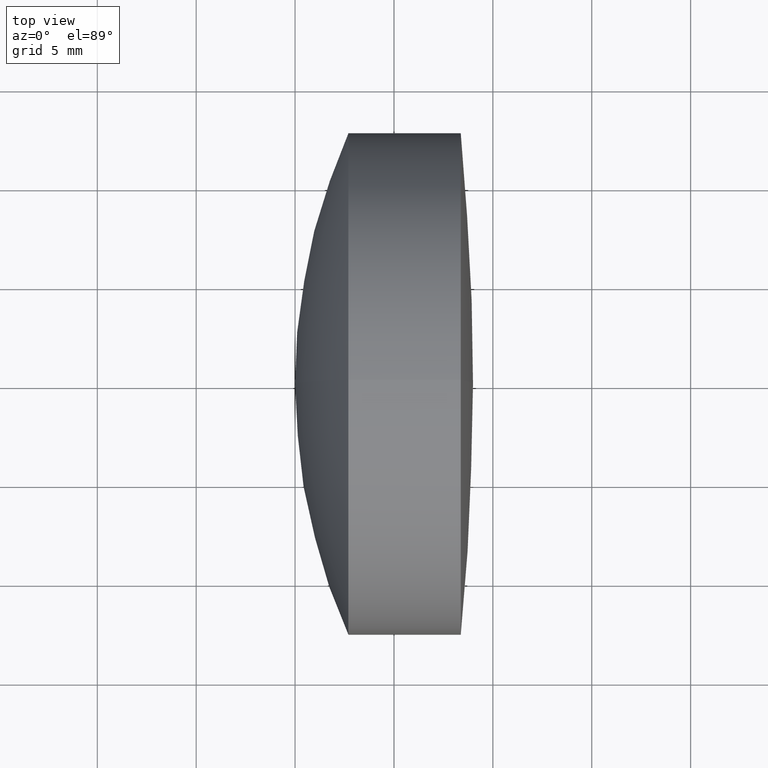
[diagram: clean part render]
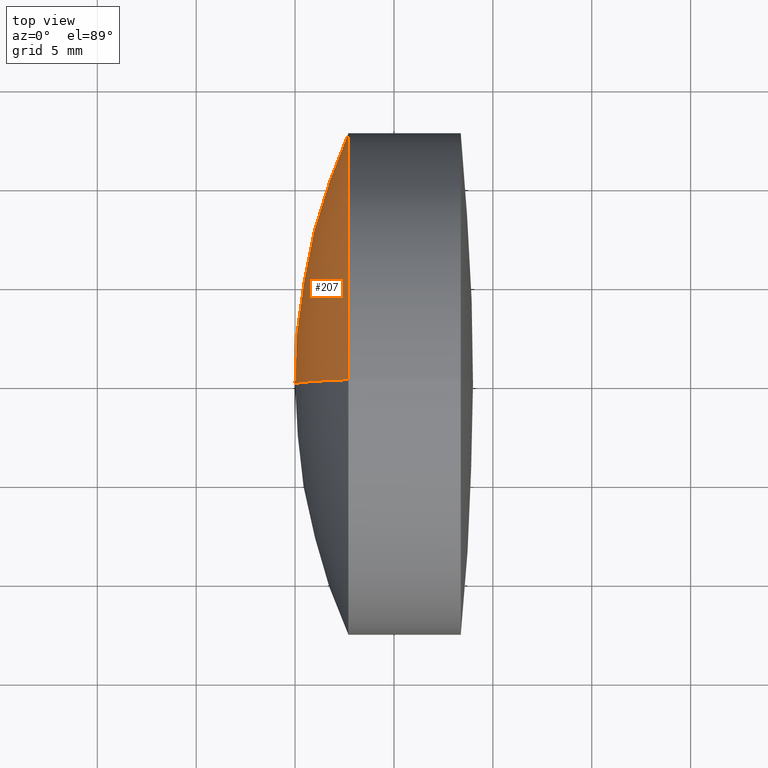
[diagram: same view with one face highlighted and labeled with its STEP entity id]
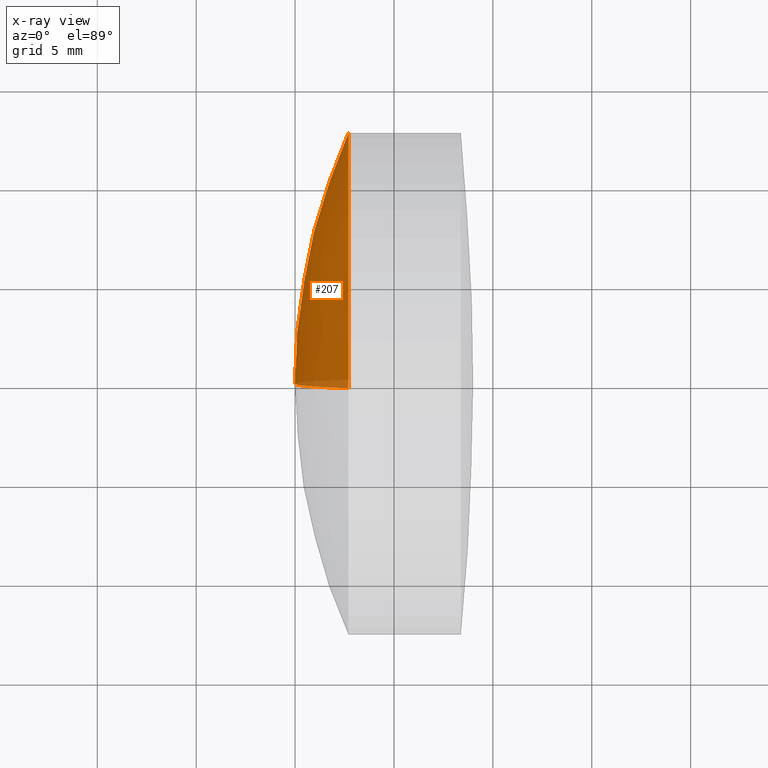
[diagram: x-ray of the same camera — body ghosted, the highlighted face saturated]
A machine part, top view. The second image highlights one B-rep face of the part: STEP entity #207.
The next image is the same camera in x-ray: the body ghosted, the highlighted face saturated — about 3% of this face is hidden behind the body in this view.
In plain terms, the highlighted spherical surface has radius 31.2 mm.
Its self-contained STEP definition (entity closure, byte-faithful):
#13 = EDGE_CURVE ( 'NONE', #32, #209, #19, .T. ) ;
#19 = CIRCLE ( 'NONE', #43, 31.19999999999998500 ) ;
#32 = VERTEX_POINT ( 'NONE', #253 ) ;
#34 = DIRECTION ( 'NONE',  ( 0.0000000000000000000, -1.224646799147353200E-016, 1.000000000000000000 ) ) ;
#35 = CARTESIAN_POINT ( 'NONE',  ( 261.1958458084194500, 0.0000000000000000000, -5.967343666751443000E-015 ) ) ;
#43 = AXIS2_PLACEMENT_3D ( 'NONE', #35, #57, #155 ) ;
#57 = DIRECTION ( 'NONE',  ( 0.0000000000000000000, -1.000000000000000000, 0.0000000000000000000 ) ) ;
#62 = EDGE_LOOP ( 'NONE', ( #242, #258, #224 ) ) ;
#71 = DIRECTION ( 'NONE',  ( 0.0000000000000000000, 1.000000000000000000, 0.0000000000000000000 ) ) ;
#89 = DIRECTION ( 'NONE',  ( 0.0000000000000000000, 0.0000000000000000000, 1.000000000000000000 ) ) ;
#112 = DIRECTION ( 'NONE',  ( 0.0000000000000000000, 0.0000000000000000000, 1.000000000000000000 ) ) ;
#129 = CIRCLE ( 'NONE', #192, 12.69999999999999200 ) ;
#137 = FACE_OUTER_BOUND ( 'NONE', #62, .T. ) ;
#155 = DIRECTION ( 'NONE',  ( 0.0000000000000000000, 0.0000000000000000000, -1.000000000000000000 ) ) ;
#178 = AXIS2_PLACEMENT_3D ( 'NONE', #312, #281, #34 ) ;
#183 = CARTESIAN_POINT ( 'NONE',  ( 229.9958458084194600, 0.0000000000000000000, -4.056894660081572400E-015 ) ) ;
#192 = AXIS2_PLACEMENT_3D ( 'NONE', #324, #297, #112 ) ;
#195 = SPHERICAL_SURFACE ( 'NONE', #270, 31.19999999999998500 ) ;
#196 = EDGE_CURVE ( 'NONE', #239, #209, #205, .T. ) ;
#205 = CIRCLE ( 'NONE', #178, 31.19999999999998500 ) ;
#207 = ADVANCED_FACE ( 'NONE', ( #137 ), #195, .T. ) ;
#209 = VERTEX_POINT ( 'NONE', #183 ) ;
#216 = CARTESIAN_POINT ( 'NONE',  ( 261.1958458084194500, 0.0000000000000000000, -5.967343666751443000E-015 ) ) ;
#221 = EDGE_CURVE ( 'NONE', #32, #239, #129, .T. ) ;
#224 = ORIENTED_EDGE ( 'NONE', *, *, #13, .F. ) ;
#239 = VERTEX_POINT ( 'NONE', #322 ) ;
#242 = ORIENTED_EDGE ( 'NONE', *, *, #221, .T. ) ;
#253 = CARTESIAN_POINT ( 'NONE',  ( 232.6976002483854100, 0.0000000000000000000, 12.69999999999999600 ) ) ;
#258 = ORIENTED_EDGE ( 'NONE', *, *, #196, .T. ) ;
#270 = AXIS2_PLACEMENT_3D ( 'NONE', #216, #71, #89 ) ;
#281 = DIRECTION ( 'NONE',  ( -0.0000000000000000000, 1.000000000000000000, 1.224646799147353200E-016 ) ) ;
#297 = DIRECTION ( 'NONE',  ( -1.000000000000000000, -0.0000000000000000000, -0.0000000000000000000 ) ) ;
#312 = CARTESIAN_POINT ( 'NONE',  ( 261.1958458084194500, 0.0000000000000000000, -5.967343666751443000E-015 ) ) ;
#322 = CARTESIAN_POINT ( 'NONE',  ( 232.6976002483854100, 1.555301434917138000E-015, -12.69999999999999900 ) ) ;
#324 = CARTESIAN_POINT ( 'NONE',  ( 232.6976002483854100, 0.0000000000000000000, 0.0000000000000000000 ) ) ;